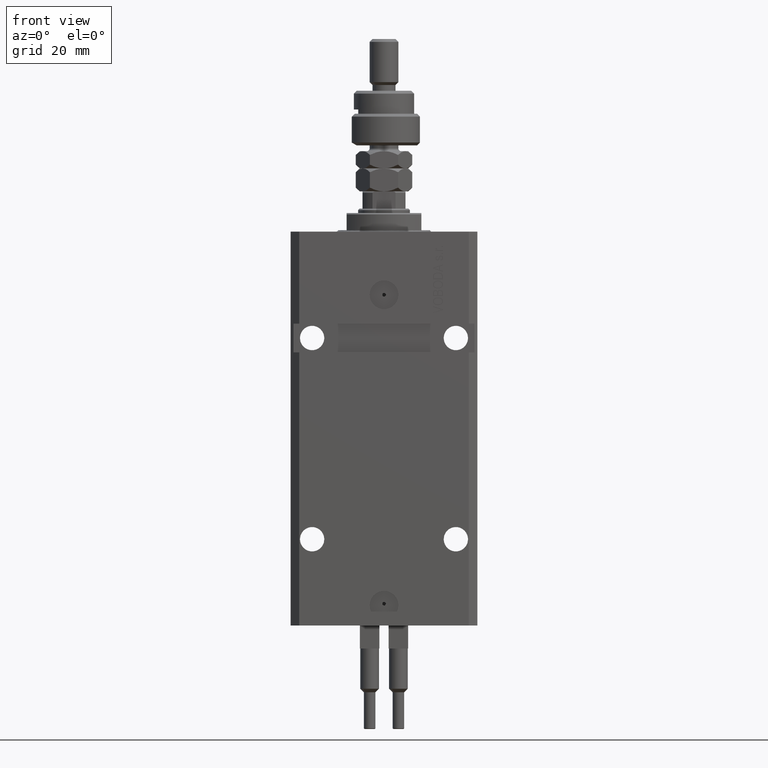
[diagram: clean part render]
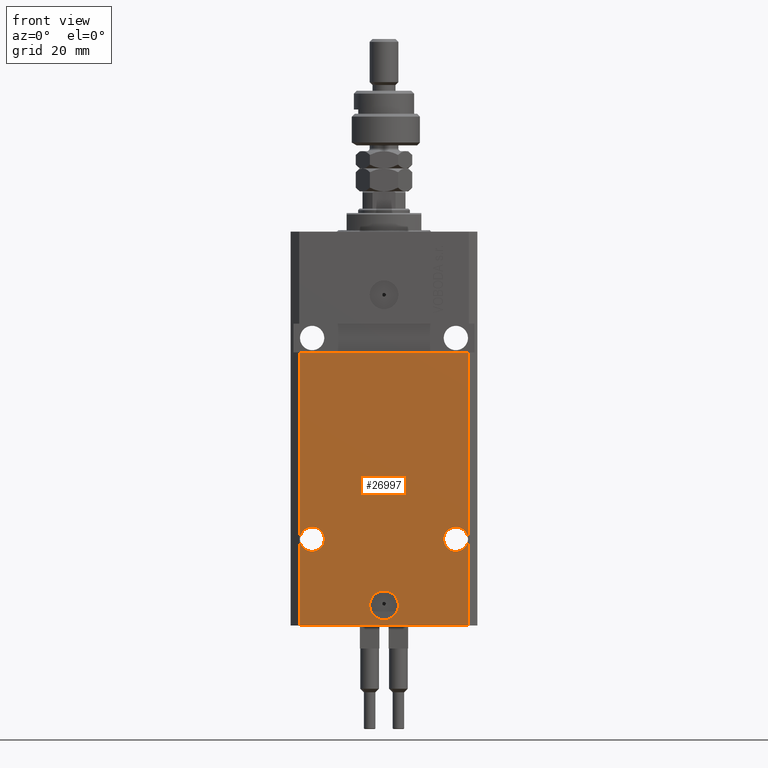
[diagram: same view with one face highlighted and labeled with its STEP entity id]
A machine part, front view. The second image highlights one B-rep face of the part: STEP entity #26997.
In plain terms, the highlighted planar face has unit normal (0, -1, 0).
Its self-contained STEP definition (entity closure, byte-faithful):
#344 = EDGE_LOOP ( 'NONE', ( #50701, #16036 ) ) ;
#609 = DIRECTION ( 'NONE',  ( -1.000000000000000000, 0.000000000000000000, 0.000000000000000000 ) ) ;
#610 = LINE ( 'NONE', #24472, #35658 ) ;
#1715 = AXIS2_PLACEMENT_3D ( 'NONE', #41801, #14559, #21311 ) ;
#2058 = DIRECTION ( 'NONE',  ( 1.000000000000000000, 0.000000000000000000, 0.000000000000000000 ) ) ;
#2265 = DIRECTION ( 'NONE',  ( 0.000000000000000000, 0.000000000000000000, 1.000000000000000000 ) ) ;
#2428 = VERTEX_POINT ( 'NONE', #47841 ) ;
#2436 = EDGE_CURVE ( 'NONE', #38236, #28746, #46999, .T. ) ;
#2509 = ORIENTED_EDGE ( 'NONE', *, *, #45910, .T. ) ;
#2583 = AXIS2_PLACEMENT_3D ( 'NONE', #9509, #5333, #48935 ) ;
#3244 = DIRECTION ( 'NONE',  ( 0.000000000000000000, 0.000000000000000000, 1.000000000000000000 ) ) ;
#3483 = EDGE_LOOP ( 'NONE', ( #16340, #27067 ) ) ;
#4870 = CARTESIAN_POINT ( 'NONE',  ( 2.646188353185214061E-15, -22.49999999999949551, -130.0000000000000000 ) ) ;
#5333 = DIRECTION ( 'NONE',  ( 1.176083712526788232E-16, -1.000000000000000000, 0.000000000000000000 ) ) ;
#5749 = VERTEX_POINT ( 'NONE', #13727 ) ;
#5907 = DIRECTION ( 'NONE',  ( 1.176083712526788232E-16, -1.000000000000000000, 0.000000000000000000 ) ) ;
#6538 = CIRCLE ( 'NONE', #34687, 5.000000000000006217 ) ;
#7246 = ORIENTED_EDGE ( 'NONE', *, *, #27276, .F. ) ;
#7533 = CIRCLE ( 'NONE', #1715, 4.249999999989050536 ) ;
#8526 = CARTESIAN_POINT ( 'NONE',  ( 5.000000000000008882, -22.49999999999949551, -130.0000000000000000 ) ) ;
#9036 = FACE_OUTER_BOUND ( 'NONE', #26525, .T. ) ;
#9355 = DIRECTION ( 'NONE',  ( 1.176083712526788232E-16, -1.000000000000000000, 0.000000000000000000 ) ) ;
#9509 = CARTESIAN_POINT ( 'NONE',  ( 25.00000000000001066, -22.49999999999949196, -107.0000000000000000 ) ) ;
#9730 = ORIENTED_EDGE ( 'NONE', *, *, #39807, .T. ) ;
#10078 = EDGE_CURVE ( 'NONE', #23420, #32609, #6538, .T. ) ;
#10852 = VERTEX_POINT ( 'NONE', #34763 ) ;
#12815 = CARTESIAN_POINT ( 'NONE',  ( -25.00000000000000355, -22.49999999999949907, -107.0000000000000000 ) ) ;
#12817 = VERTEX_POINT ( 'NONE', #45510 ) ;
#13727 = CARTESIAN_POINT ( 'NONE',  ( 29.24999999998906119, -22.49999999999949196, -107.0000000000000000 ) ) ;
#14298 = DIRECTION ( 'NONE',  ( 1.176083712526788232E-16, -1.000000000000000000, 0.000000000000000000 ) ) ;
#14559 = DIRECTION ( 'NONE',  ( 1.176083712526788232E-16, -1.000000000000000000, 0.000000000000000000 ) ) ;
#15988 = EDGE_CURVE ( 'NONE', #2428, #49147, #610, .T. ) ;
#16036 = ORIENTED_EDGE ( 'NONE', *, *, #16450, .F. ) ;
#16340 = ORIENTED_EDGE ( 'NONE', *, *, #2436, .F. ) ;
#16450 = EDGE_CURVE ( 'NONE', #32609, #23420, #49770, .T. ) ;
#17326 = FACE_BOUND ( 'NONE', #3483, .T. ) ;
#17589 = FACE_BOUND ( 'NONE', #27959, .T. ) ;
#18601 = LINE ( 'NONE', #42478, #27062 ) ;
#18734 = CARTESIAN_POINT ( 'NONE',  ( 29.49999999999650058, -22.49999999999949196, -41.99999999999998579 ) ) ;
#18803 = AXIS2_PLACEMENT_3D ( 'NONE', #12815, #24227, #609 ) ;
#18836 = ORIENTED_EDGE ( 'NONE', *, *, #15988, .F. ) ;
#19161 = CIRCLE ( 'NONE', #2583, 4.249999999989050536 ) ;
#19575 = LINE ( 'NONE', #35681, #49664 ) ;
#19894 = CARTESIAN_POINT ( 'NONE',  ( -29.49999999999650413, -22.49999999999949907, -137.0000000000000000 ) ) ;
#21311 = DIRECTION ( 'NONE',  ( -1.000000000000000000, 0.000000000000000000, 0.000000000000000000 ) ) ;
#22615 = CARTESIAN_POINT ( 'NONE',  ( -20.75000000001095302, -22.49999999999949907, -107.0000000000000000 ) ) ;
#23420 = VERTEX_POINT ( 'NONE', #8526 ) ;
#24227 = DIRECTION ( 'NONE',  ( 1.176083712526788232E-16, -1.000000000000000000, 0.000000000000000000 ) ) ;
#24472 = CARTESIAN_POINT ( 'NONE',  ( -32.49999999999650413, -22.49999999999949907, -41.99999999999999289 ) ) ;
#24847 = DIRECTION ( 'NONE',  ( 1.000000000000000000, 1.176083712526788232E-16, 0.000000000000000000 ) ) ;
#25108 = FACE_BOUND ( 'NONE', #344, .T. ) ;
#25254 = CARTESIAN_POINT ( 'NONE',  ( 29.49999999999650413, -22.49999999999949196, -137.0000000000000000 ) ) ;
#25623 = PLANE ( 'NONE',  #37851 ) ;
#26525 = EDGE_LOOP ( 'NONE', ( #18836, #7246, #9730, #2509 ) ) ;
#26734 = CARTESIAN_POINT ( 'NONE',  ( 2.646188353185214061E-15, -22.49999999999949551, -130.0000000000000000 ) ) ;
#26997 = ADVANCED_FACE ( 'NONE', ( #25108, #17589, #17326, #9036 ), #25623, .T. ) ;
#27062 = VECTOR ( 'NONE', #2265, 1000.000000000000000 ) ;
#27067 = ORIENTED_EDGE ( 'NONE', *, *, #40621, .F. ) ;
#27276 = EDGE_CURVE ( 'NONE', #10852, #2428, #18601, .T. ) ;
#27959 = EDGE_LOOP ( 'NONE', ( #39468, #42936 ) ) ;
#28746 = VERTEX_POINT ( 'NONE', #37964 ) ;
#29009 = CARTESIAN_POINT ( 'NONE',  ( -29.49999999999650413, -22.49999999999949907, -137.0000000000000000 ) ) ;
#30700 = CIRCLE ( 'NONE', #31502, 4.249999999989050536 ) ;
#31502 = AXIS2_PLACEMENT_3D ( 'NONE', #42006, #9355, #2058 ) ;
#32609 = VERTEX_POINT ( 'NONE', #40358 ) ;
#33001 = VERTEX_POINT ( 'NONE', #25254 ) ;
#34260 = DIRECTION ( 'NONE',  ( 1.000000000000000000, 0.000000000000000000, 0.000000000000000000 ) ) ;
#34687 = AXIS2_PLACEMENT_3D ( 'NONE', #4870, #47463, #47207 ) ;
#34763 = CARTESIAN_POINT ( 'NONE',  ( -29.49999999999650413, -22.49999999999949907, -137.0000000000000000 ) ) ;
#35658 = VECTOR ( 'NONE', #43946, 1000.000000000000000 ) ;
#35681 = CARTESIAN_POINT ( 'NONE',  ( 29.49999999999650413, -22.49999999999949196, -137.0000000000000000 ) ) ;
#37851 = AXIS2_PLACEMENT_3D ( 'NONE', #29009, #5907, #24847 ) ;
#37964 = CARTESIAN_POINT ( 'NONE',  ( -29.24999999998905409, -22.49999999999949907, -107.0000000000000000 ) ) ;
#38236 = VERTEX_POINT ( 'NONE', #22615 ) ;
#39468 = ORIENTED_EDGE ( 'NONE', *, *, #49542, .F. ) ;
#39807 = EDGE_CURVE ( 'NONE', #10852, #33001, #44019, .T. ) ;
#40358 = CARTESIAN_POINT ( 'NONE',  ( -5.000000000000003553, -22.49999999999949551, -130.0000000000000000 ) ) ;
#40621 = EDGE_CURVE ( 'NONE', #28746, #38236, #7533, .T. ) ;
#41502 = VECTOR ( 'NONE', #51055, 1000.000000000000000 ) ;
#41801 = CARTESIAN_POINT ( 'NONE',  ( -25.00000000000000355, -22.49999999999949907, -107.0000000000000000 ) ) ;
#42006 = CARTESIAN_POINT ( 'NONE',  ( 25.00000000000001066, -22.49999999999949196, -107.0000000000000000 ) ) ;
#42478 = CARTESIAN_POINT ( 'NONE',  ( -29.49999999999650413, -22.49999999999949907, -137.0000000000000000 ) ) ;
#42936 = ORIENTED_EDGE ( 'NONE', *, *, #47442, .F. ) ;
#43946 = DIRECTION ( 'NONE',  ( 1.000000000000000000, 1.067522139062765303E-16, 1.067522139062765303E-16 ) ) ;
#44019 = LINE ( 'NONE', #19894, #41502 ) ;
#45510 = CARTESIAN_POINT ( 'NONE',  ( 20.75000000001096012, -22.49999999999949196, -107.0000000000000000 ) ) ;
#45910 = EDGE_CURVE ( 'NONE', #33001, #49147, #19575, .T. ) ;
#46999 = CIRCLE ( 'NONE', #18803, 4.249999999989050536 ) ;
#47207 = DIRECTION ( 'NONE',  ( 1.000000000000000000, 0.000000000000000000, 0.000000000000000000 ) ) ;
#47442 = EDGE_CURVE ( 'NONE', #12817, #5749, #30700, .T. ) ;
#47463 = DIRECTION ( 'NONE',  ( 1.176083712526788232E-16, -1.000000000000000000, 0.000000000000000000 ) ) ;
#47841 = CARTESIAN_POINT ( 'NONE',  ( -29.49999999999650413, -22.49999999999949907, -41.99999999999999289 ) ) ;
#48935 = DIRECTION ( 'NONE',  ( 1.000000000000000000, 0.000000000000000000, 0.000000000000000000 ) ) ;
#49147 = VERTEX_POINT ( 'NONE', #18734 ) ;
#49542 = EDGE_CURVE ( 'NONE', #5749, #12817, #19161, .T. ) ;
#49664 = VECTOR ( 'NONE', #3244, 1000.000000000000000 ) ;
#49770 = CIRCLE ( 'NONE', #50587, 5.000000000000006217 ) ;
#50587 = AXIS2_PLACEMENT_3D ( 'NONE', #26734, #14298, #34260 ) ;
#50701 = ORIENTED_EDGE ( 'NONE', *, *, #10078, .F. ) ;
#51055 = DIRECTION ( 'NONE',  ( 1.000000000000000000, 1.176083712526788232E-16, 0.000000000000000000 ) ) ;